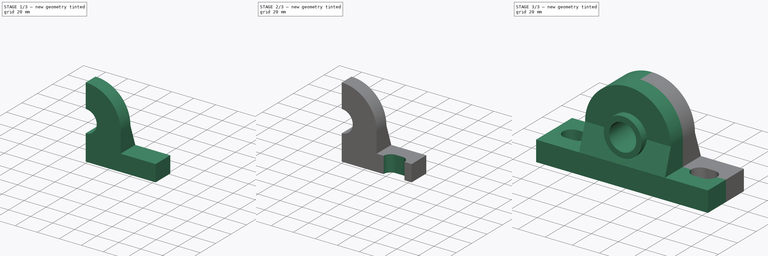
[diagram: build sequence overview — one tinted view per stage of 3, left to right]
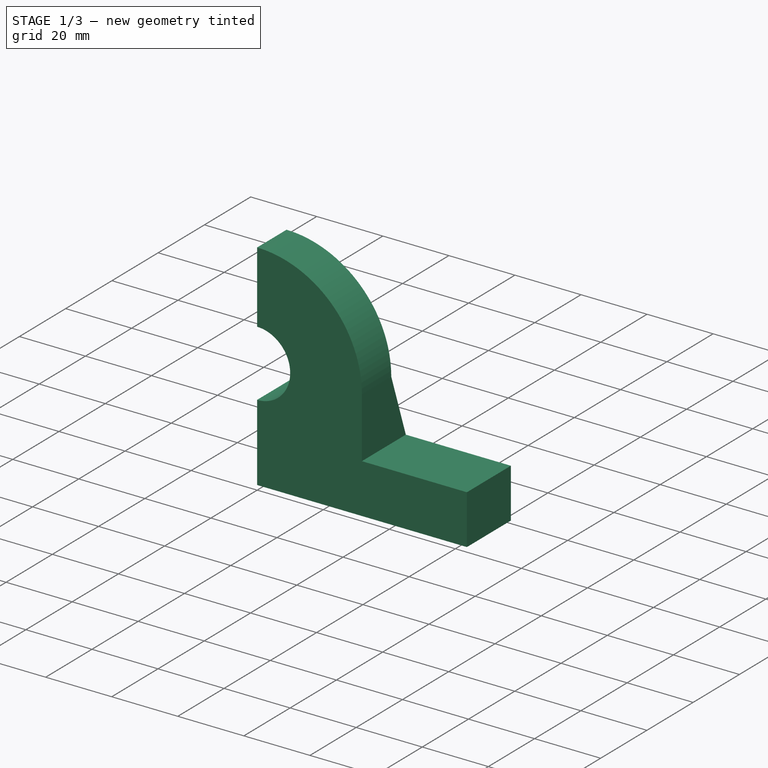
[diagram: stage 1 of 3 — iso view after this stage's code; geometry added in this stage tinted green]
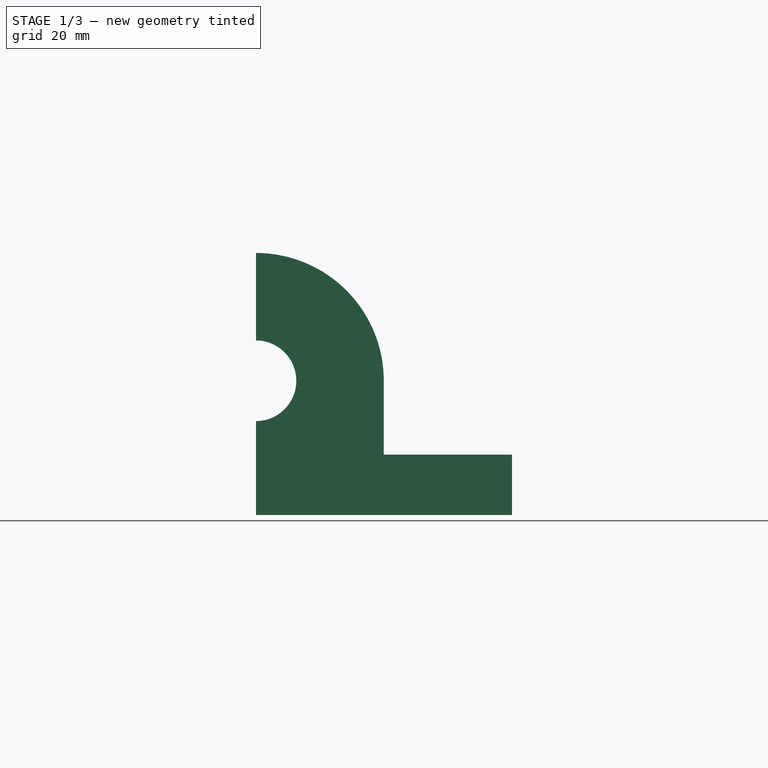
[diagram: stage 1 of 3 — front view after this stage's code; geometry added in this stage tinted green]
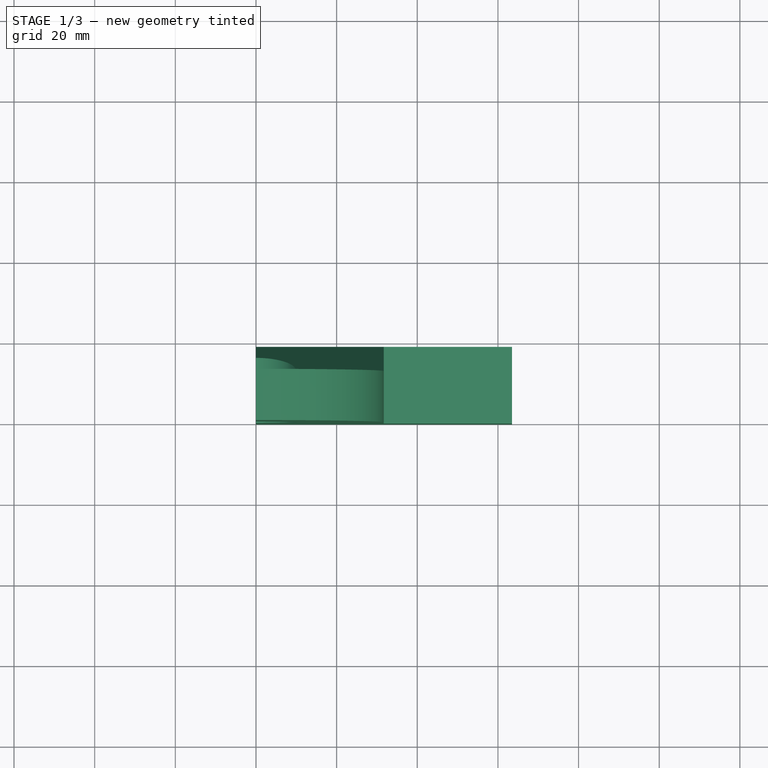
[diagram: stage 1 of 3 — top view after this stage's code; geometry added in this stage tinted green]
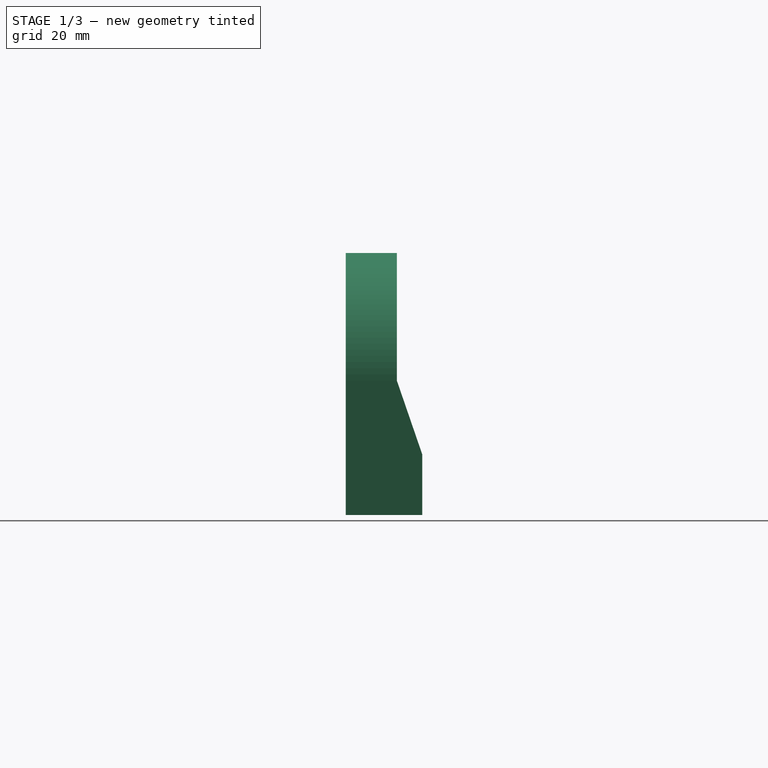
[diagram: stage 1 of 3 — right view after this stage's code; geometry added in this stage tinted green]
FCSTD DOCUMENT  (FreeCAD 0.21R32532 (Git))
Label: P204_Bearing
License: All rights reserved
LicenseURL: http://en.wikipedia.org/wiki/All_rights_reserved
objects: Sketcher::SketchObject×4, PartDesign::CoordinateSystem×3, PartDesign::Pad×2, PartDesign::Pocket×2, PartDesign::Mirrored×2, PartDesign::MultiTransform×1, PartDesign::Body×1
note: 19 computed .brp shape members not serialized (recipe doc carries the construction recipe); baked Part::Feature solids carry a one-line shape summary decoded from their .brp

FEATURE [Sketcher::SketchObject] Sketch
  FullyConstrained = true
  MapMode = 5
  Placement = pos=(0,0,0) rot=(1,0,0;1.5708rad)
  Support = -> [XZ_Plane]
  sketch-geometry (16):
    g0: ArcOfCircle CenterX=0 CenterY=33.3 CenterZ=0 NormalX=0 NormalY=0 NormalZ=1 AngleXU=0 Radius=31.7 StartAngle=0 EndAngle=1.5708
    g1: LineSegment StartX=31.7 StartY=33.3 StartZ=0 EndX=31.7 EndY=15 EndZ=0
    g2: LineSegment StartX=31.7 StartY=15 StartZ=0 EndX=63.5 EndY=15 EndZ=0
    g3: LineSegment StartX=63.5 StartY=15 StartZ=0 EndX=63.5 EndY=0 EndZ=0
    g4: LineSegment StartX=38 StartY=7.5 StartZ=0 EndX=47.5 EndY=7.5 EndZ=0
    g5: LineSegment StartX=47.5 StartY=7.5 StartZ=0 EndX=57 EndY=7.5 EndZ=0
    g6: LineSegment StartX=47.5 StartY=0 StartZ=0 EndX=47.5 EndY=7.5 EndZ=0
    g7: LineSegment StartX=47.5 StartY=7.5 StartZ=0 EndX=47.5 EndY=15 EndZ=0
    g8: LineSegment StartX=38 StartY=7.5 StartZ=0 EndX=31.7 EndY=15 EndZ=0
    g9: LineSegment StartX=57 StartY=7.5 StartZ=0 EndX=63.5 EndY=15 EndZ=0
    g10: LineSegment StartX=0 StartY=0 StartZ=0 EndX=63.5 EndY=0 EndZ=0
    g11: LineSegment StartX=0 StartY=0 StartZ=0 EndX=-1.8e-15 EndY=23.3 EndZ=0
    g12: LineSegment StartX=3.1e-15 StartY=43.3 StartZ=0 EndX=1.9e-15 EndY=65 EndZ=0
    g13: ArcOfCircle CenterX=0 CenterY=33.3 CenterZ=0 NormalX=0 NormalY=0 NormalZ=1 AngleXU=0 Radius=10 StartAngle=4.71239 EndAngle=7.85398
    g14: GeomPoint X=-47.5 Y=0 Z=0
    g15: GeomPoint X=-63.5 Y=1.5e-15 Z=0
  constraints (44):
    c: PointOnObject(g0,g-2)
    c: PointOnObject(g0,g-2)
    c: Coincident(g2,g1)
    c: Horizontal(g2)
    c: Coincident(g3,g2)
    c: PointOnObject(g3,g-1)
    c: Vertical(g3)
    c: Coincident(g4,g5)
    c: Horizontal(g4)
    c: Horizontal(g5)
    c: Coincident(g6,g7)
    c: Vertical(g6)
    c: Vertical(g7)
    c: Coincident(g4,g6)
    c: Equal(g4,g5)
    c: Equal(g7,g6)
    c: PointOnObject(g7,g2)
    c: PointOnObject(g6,g-1)
    c: DistanceX(g4,g5) = 19
    c: DistanceX(g6) = 47.5
    c: DistanceX(g3) = 63.5
    c: DistanceY(g6,g7) = 15  'fixture_height'
    c: DistanceY(g0) = 33.3  'hole_height'
    c: DistanceY(g0) = 65  'height'
    c: Tangent(g1,g0) = 1.5708
    c: Coincident(g8,g4)
    c: Coincident(g8,g1)
    c: Coincident(g9,g5)
    c: Coincident(g9,g2)
    c: Vertical(g1)
    c: Coincident(g10,g-1)
    c: Coincident(g10,g3)
    c: Coincident(g11,g10)
    c: PointOnObject(g11,g-2)
    c: PointOnObject(g12,g-2)
    c: Coincident(g12,g0)
    c: Coincident(g13,g0)
    c: Coincident(g13,g11)
    c: Coincident(g13,g12)
    c: Diameter(g13) = 20  'hole_d'
    c: Symmetric(g14,g6,g10)
    c: Symmetric(g15,g3,g10)
    c: DistanceX(g14,g6) = 95  'slot_d'
    c: DistanceX(g15,g3) = 127  'total_width'
FEATURE [PartDesign::Pad] Pad  label="housing"
  Direction = (0,-1,2e-16)
  Length = 19
  Length2 = 10
  Placement = pos=(0,0,0) rot=(1,0,0;1.5708rad)
  Profile = -> Sketch
  ReferenceAxis = -> Sketch [N_Axis]
  Reversed = true
  Type = 0
FEATURE [Sketcher::SketchObject] Sketch001
  AttachmentOffset = pos=(47.5,0,0) rot=(0,0,1;0rad)
  FullyConstrained = true
  MapMode = 5
  Placement = pos=(47.5,0,0) rot=(0,0,1;0rad)
  Support = -> [XY_Plane]
  expr: .AttachmentOffset.Base.x = Sketch.Constraints.slot_d / 2
  sketch-geometry (6):
    g0: ArcOfCircle CenterX=-3 CenterY=0 CenterZ=0 NormalX=0 NormalY=0 NormalZ=1 AngleXU=0 Radius=6.5 StartAngle=1.5708 EndAngle=4.71239
    g1: ArcOfCircle CenterX=3 CenterY=0 CenterZ=0 NormalX=0 NormalY=0 NormalZ=1 AngleXU=0 Radius=6.5 StartAngle=4.71239 EndAngle=7.85398
    g2: LineSegment StartX=-3 StartY=-6.5 StartZ=0 EndX=3 EndY=-6.5 EndZ=0
    g3: LineSegment StartX=3 StartY=6.5 StartZ=0 EndX=-3 EndY=6.5 EndZ=0
    g4: GeomPoint X=-9.5 Y=0 Z=0
    g5: GeomPoint X=9.5 Y=0 Z=0
  constraints (13):
    c: Tangent(g0,g2) = -1.5708
    c: Tangent(g2,g1) = -1.5708
    c: Tangent(g1,g3) = -1.5708
    c: Tangent(g3,g0) = -1.5708
    c: Equal(g0,g1)
    c: PointOnObject(g0,g-1)
    c: Symmetric(g0,g1,g-1)
    c: Diameter(g1) = 13
    c: PointOnObject(g4,g-1)
    c: PointOnObject(g5,g-1)
    c: PointOnObject(g5,g1)
    c: PointOnObject(g4,g0)
    c: DistanceX(g4,g5) = 19
FEATURE [Sketcher::SketchObject] Sketch002
  FullyConstrained = true
  MapMode = 5
  Placement = pos=(0,0,0) rot=(0.57735,0.57735,0.57735;2.0944rad)
  Support = -> [YZ_Plane]
  expr: Constraints[11] = Sketch.Constraints.fixture_height
  expr: Constraints[7] = Pad.Length
  expr: Constraints[8] = Sketch.Constraints.height
  expr: Constraints[9] = Sketch.Constraints.hole_height
  sketch-geometry (4):
    g0: LineSegment StartX=12.7 StartY=33.3 StartZ=0 EndX=12.7 EndY=65 EndZ=0
    g1: LineSegment StartX=12.7 StartY=65 StartZ=0 EndX=19 EndY=65 EndZ=0
    g2: LineSegment StartX=19 StartY=65 StartZ=0 EndX=19 EndY=15 EndZ=0
    g3: LineSegment StartX=19 StartY=15 StartZ=0 EndX=12.7 EndY=33.3 EndZ=0
  constraints (12):
    c: Vertical(g0)
    c: Coincident(g0,g1)
    c: Horizontal(g1)
    c: Coincident(g1,g2)
    c: Vertical(g2)
    c: Coincident(g2,g3)
    c: Coincident(g3,g0)
    c: DistanceX(g2) = 19
    c: DistanceY(g1) = 65
    c: DistanceY(g0) = 33.3
    c: DistanceX(g0) = 12.7
    c: DistanceY(g2) = 15
FEATURE [PartDesign::Pocket] Pocket
  BaseFeature = -> Pad
  Direction = (-1,2e-16,-3e-16)
  Length = 5
  Length2 = 5
  Placement = pos=(0,0,0) rot=(1,0,0;1.5708rad)
  Profile = -> Sketch002
  ReferenceAxis = -> Sketch002 [N_Axis]
  Reversed = true
  Type = 1
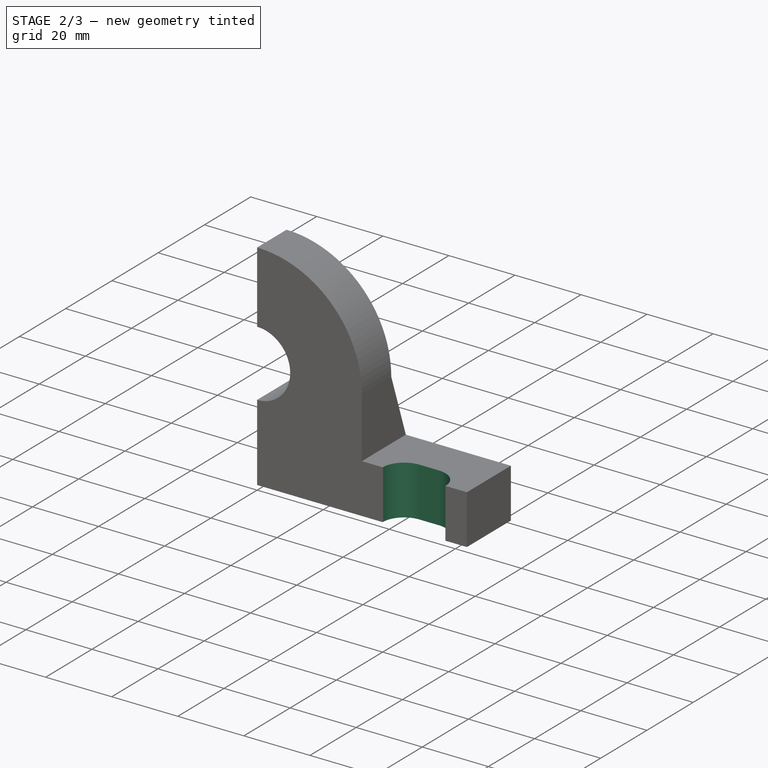
[diagram: stage 2 of 3 — iso view after this stage's code; geometry added in this stage tinted green]
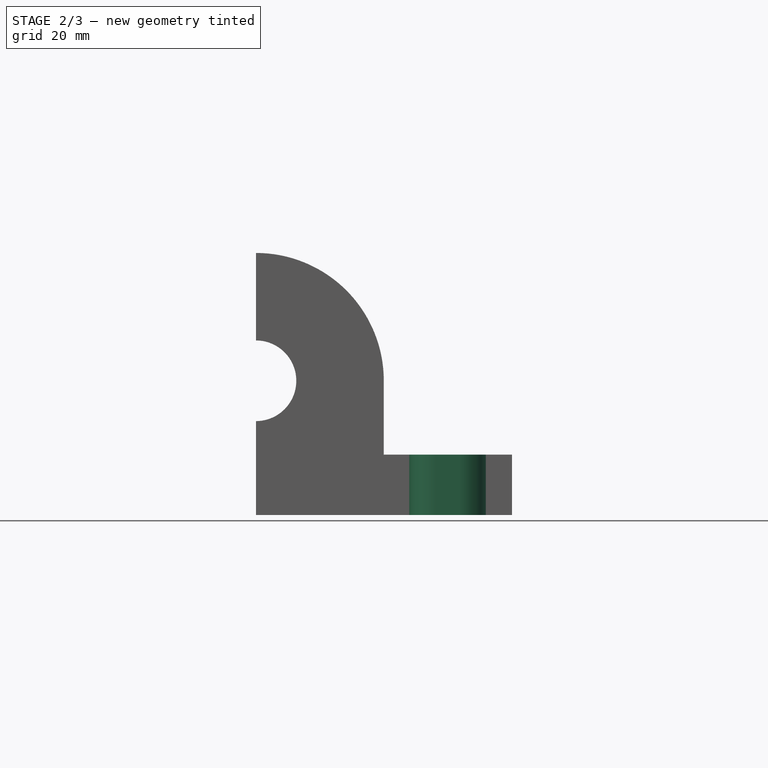
[diagram: stage 2 of 3 — front view after this stage's code; geometry added in this stage tinted green]
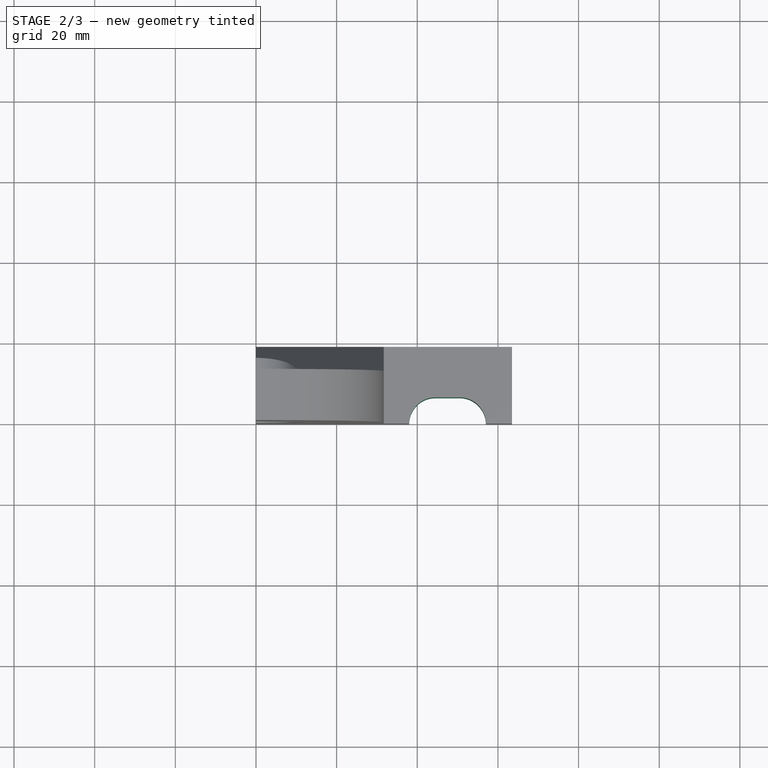
[diagram: stage 2 of 3 — top view after this stage's code; geometry added in this stage tinted green]
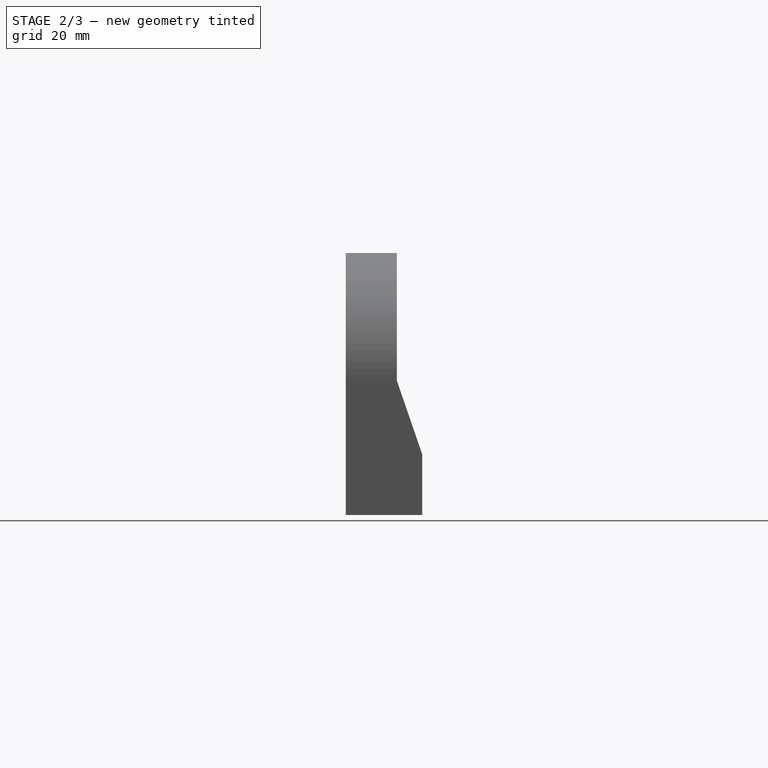
[diagram: stage 2 of 3 — right view after this stage's code; geometry added in this stage tinted green]
FEATURE [PartDesign::Pocket] Pocket001
  BaseFeature = -> Pocket
  Direction = (0,0,-1)
  Length = 5
  Length2 = 5
  Placement = pos=(0,0,0) rot=(1,0,0;1.5708rad)
  Profile = -> Sketch001
  ReferenceAxis = -> Sketch001 [N_Axis]
  Reversed = true
  Type = 1
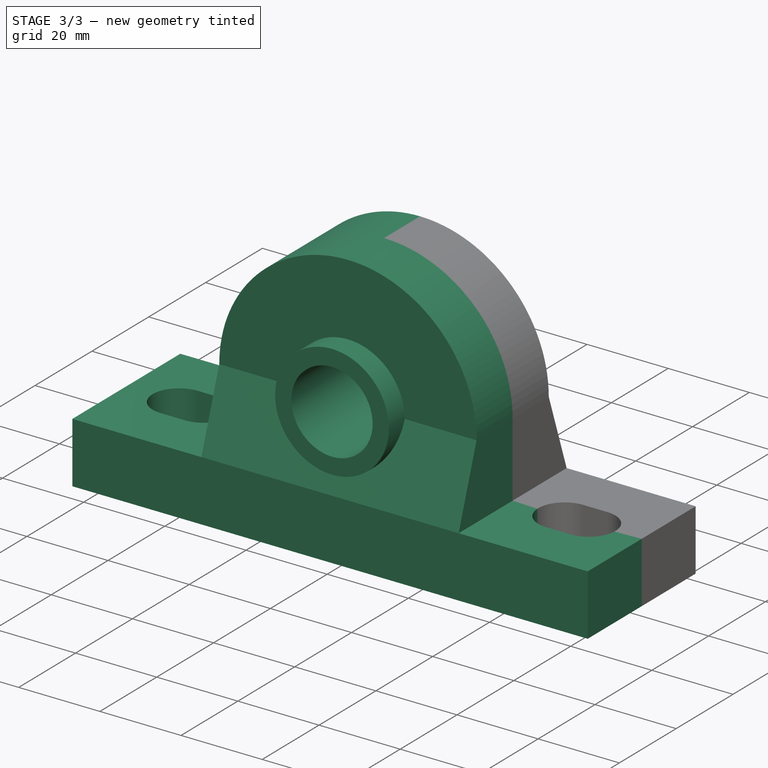
[diagram: stage 3 of 3 — iso view after this stage's code; geometry added in this stage tinted green]
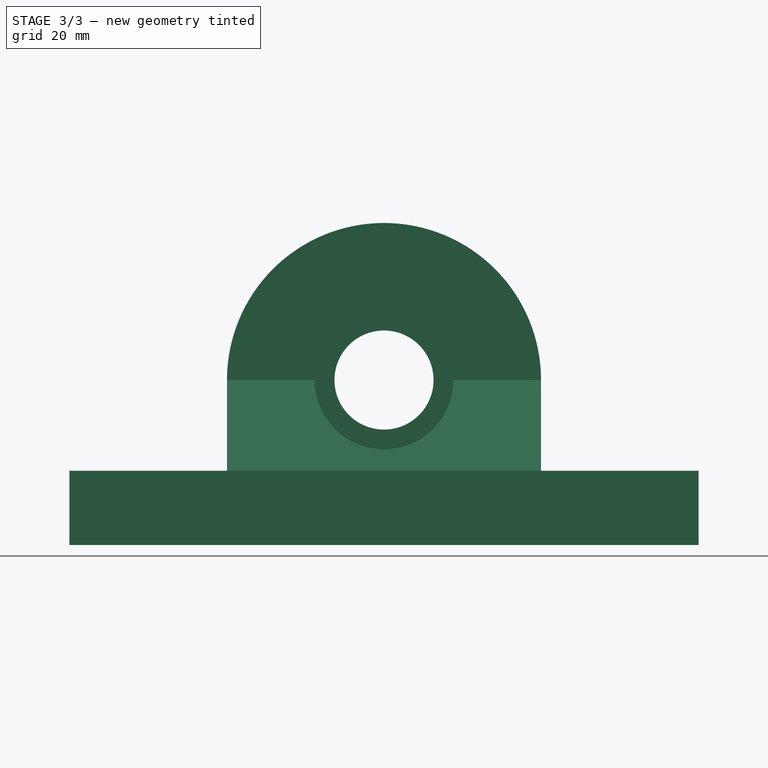
[diagram: stage 3 of 3 — front view after this stage's code; geometry added in this stage tinted green]
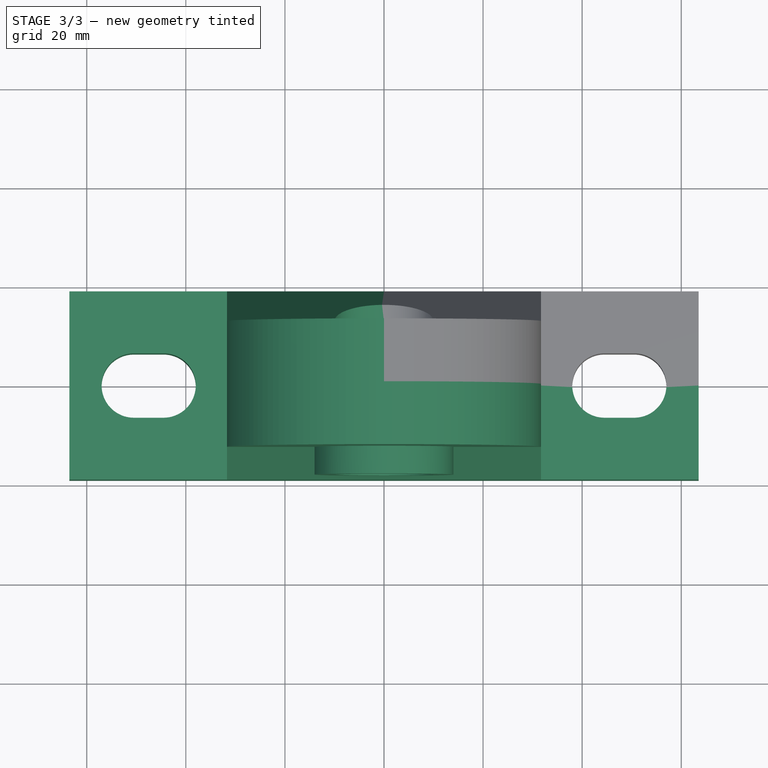
[diagram: stage 3 of 3 — top view after this stage's code; geometry added in this stage tinted green]
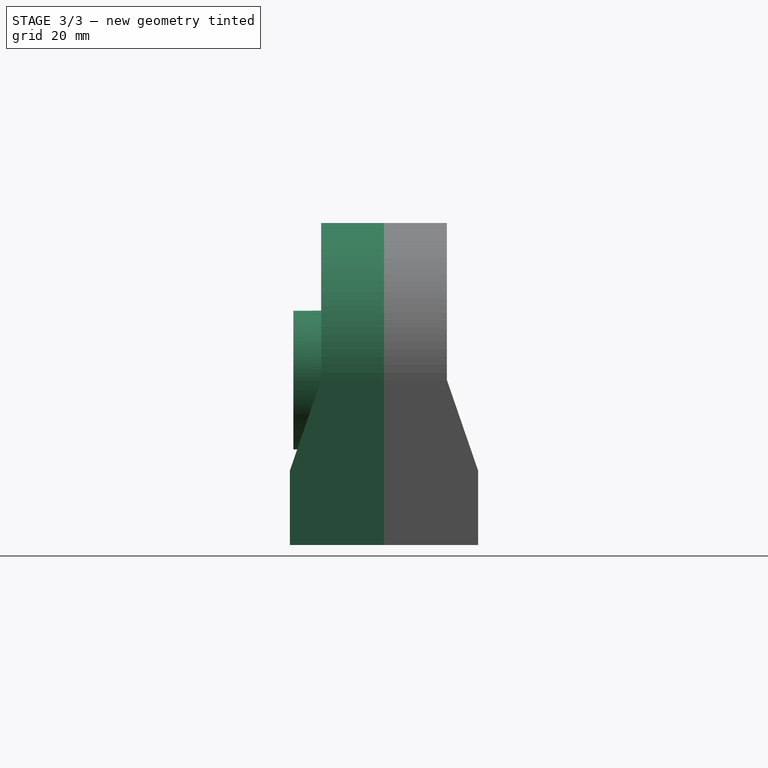
[diagram: stage 3 of 3 — right view after this stage's code; geometry added in this stage tinted green]
FEATURE [PartDesign::Mirrored] Mirrored
  MirrorPlane = -> Sketch [V_Axis]
  Placement = pos=(0,0,0) rot=(1,0,0;1.5708rad)
FEATURE [PartDesign::Mirrored] Mirrored001
  MirrorPlane = -> XZ_Plane
  Placement = pos=(0,0,0) rot=(1,0,0;1.5708rad)
FEATURE [PartDesign::MultiTransform] MultiTransform
  BaseFeature = -> Pocket001
  Originals = -> [Pad,Pocket,Pocket001]
  Placement = pos=(0,0,0) rot=(1,0,0;1.5708rad)
  Transformations = -> [Mirrored,Mirrored001]
FEATURE [Sketcher::SketchObject] Sketch003
  FullyConstrained = true
  MapMode = 5
  Placement = pos=(0,0,0) rot=(1,0,0;1.5708rad)
  Support = -> [XZ_Plane]
  expr: Constraints[2] = Sketch.Constraints.hole_d
  expr: Constraints[3] = Sketch.Constraints.hole_height
  expr: Constraints[4] = Sketch.Constraints.hole_d + 8 mm
  sketch-geometry (2):
    g0: Circle CenterX=0 CenterY=33.3 CenterZ=0 NormalX=0 NormalY=0 NormalZ=1 AngleXU=0 Radius=10
    g1: Circle CenterX=0 CenterY=33.3 CenterZ=0 NormalX=0 NormalY=0 NormalZ=1 AngleXU=0 Radius=14
  constraints (5):
    c: PointOnObject(g0,g-2)
    c: Coincident(g1,g0)
    c: Diameter(g0) = 20
    c: DistanceY(g0) = 33.3
    c: Diameter(g1) = 28
FEATURE [PartDesign::Pad] Pad001  label="bearing"
  BaseFeature = -> MultiTransform
  Direction = (0,-1,2e-16)
  Length = 18.3
  Length2 = 12.7
  Placement = pos=(0,0,0) rot=(1,0,0;1.5708rad)
  Profile = -> Sketch003
  ReferenceAxis = -> Sketch003 [N_Axis]
  Type = 4
  expr: Length = 31 mm - Length2
  expr: Length2 = 12.7
FEATURE [PartDesign::CoordinateSystem] Local_CS  label="bottom"
  AttacherType = Attacher::AttachEngine3D
  MapMode = 5
  Support = -> [XY_Plane]
FEATURE [PartDesign::CoordinateSystem] Local_CS001  label="bearing_front"
  AttacherType = Attacher::AttachEngine3D
  AttachmentOffset = pos=(0,33.3,-18.3) rot=(0,0,1;0rad)
  MapMode = 5
  Placement = pos=(0,-18.3,33.3) rot=(0,0.707107,0.707107;3.14159rad)
  Support = -> [XZ_Plane]
  expr: .AttachmentOffset.Base.y = Sketch.Constraints.hole_height
  expr: .AttachmentOffset.Base.z = -<<bearing>>.Length
FEATURE [PartDesign::CoordinateSystem] Local_CS002  label="bearing_bask"
  AttacherType = Attacher::AttachEngine3D
  AttachmentOffset = pos=(0,33.3,-12.7) rot=(0,0,1;0rad)
  MapMode = 5
  Placement = pos=(0,12.7,33.3) rot=(1,0,0;1.5708rad)
  Support = -> [XZ_Plane]
  expr: .AttachmentOffset.Base.y = Sketch.Constraints.hole_height
  expr: .AttachmentOffset.Base.z = -<<bearing>>.Length2
FEATURE [PartDesign::Body] Body  label="P204"
  Group = -> [Sketch,Pad,Sketch001,Sketch002,Pocket,Pocket001,MultiTransform,Mirrored,Mirrored001,Sketch003,Pad001,Local_CS,Local_CS001,Local_CS002]
  Origin = -> Origin
  Tip = -> Pad001
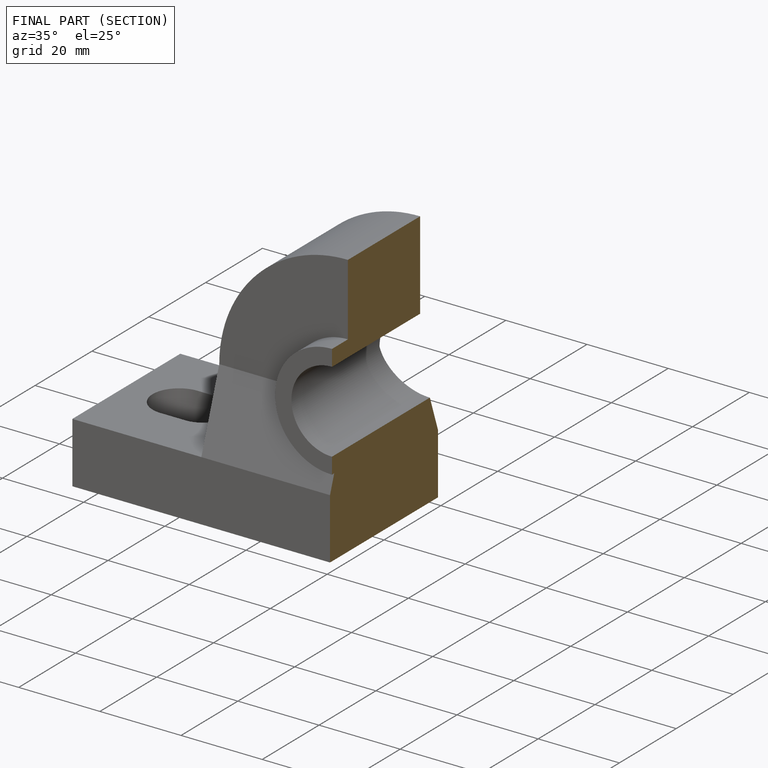
[diagram: finished part — half-section view (interior)]
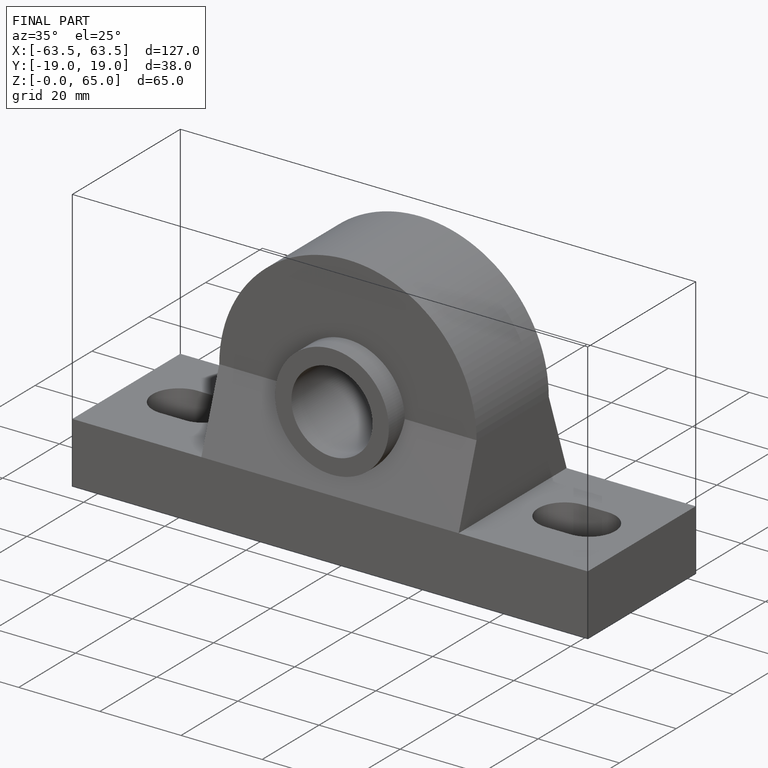
[diagram: finished part — iso view with bounding-box wireframe]
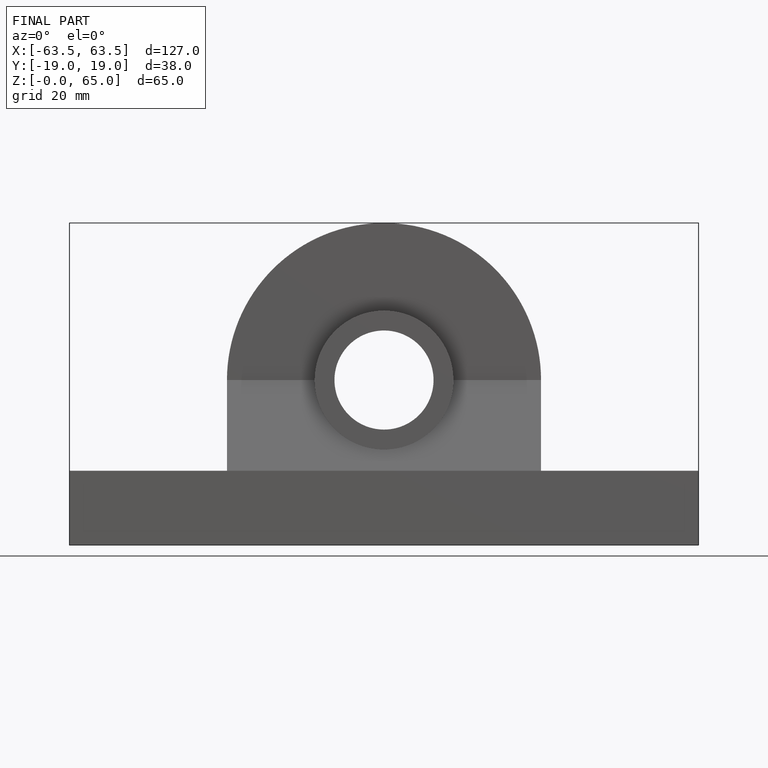
[diagram: finished part — front view with bounding-box wireframe]
